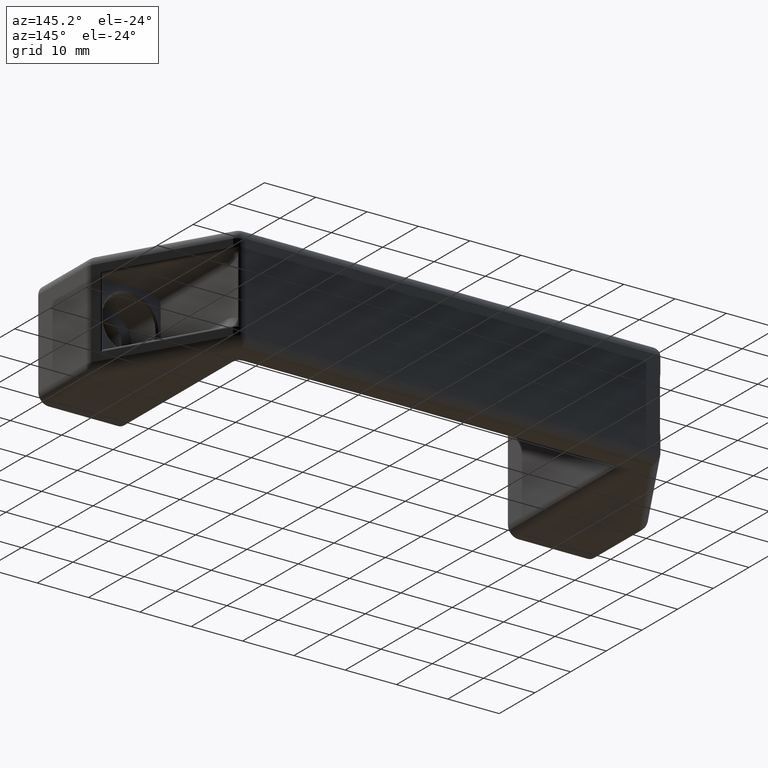
[diagram: clean part render]
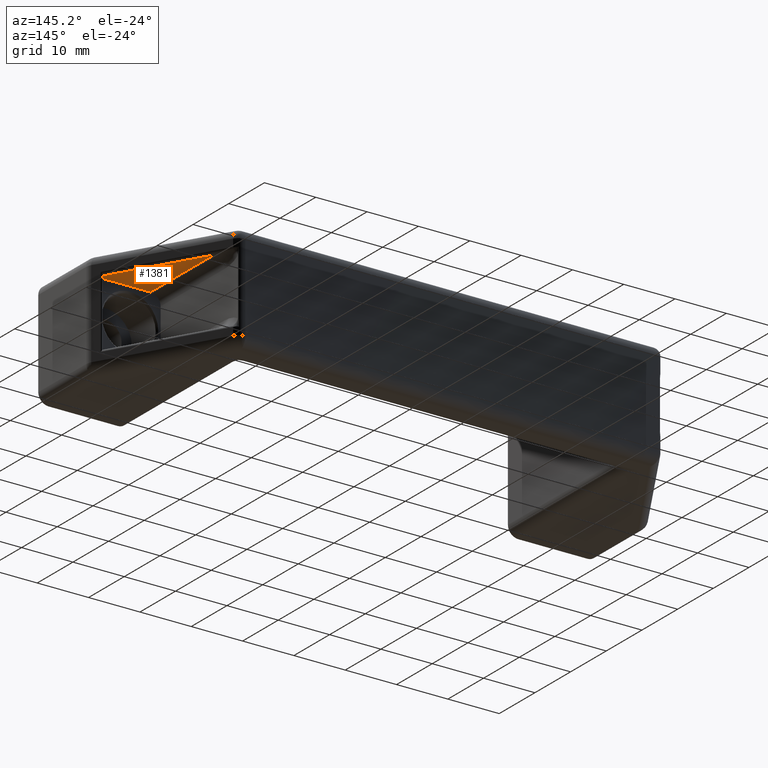
[diagram: same view with one face highlighted and labeled with its STEP entity id]
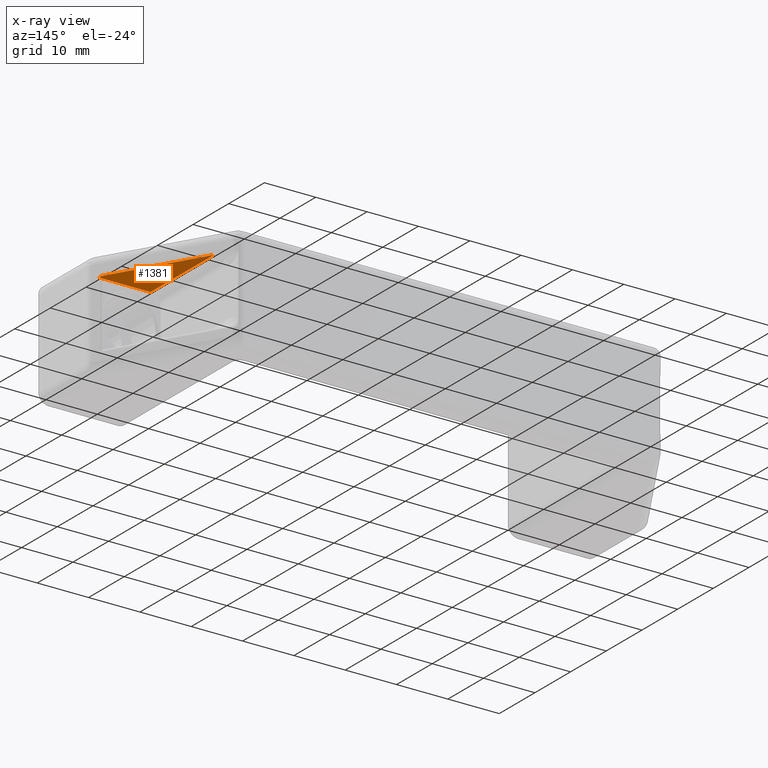
[diagram: x-ray of the same camera — body ghosted, the highlighted face saturated]
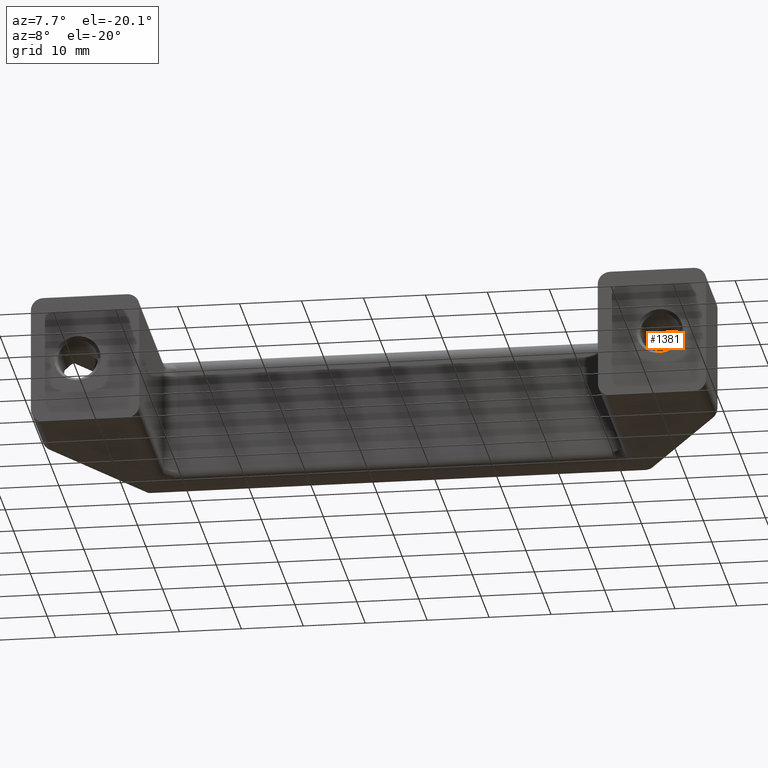
[diagram: same view with one face highlighted and labeled with its STEP entity id]
A machine part, auxiliary view. The second image highlights one B-rep face of the part: STEP entity #1381.
The next image is the same camera in x-ray: the body ghosted, the highlighted face saturated — about 0% of this face is hidden behind the body in this view.
A second angle (auxiliary view) of the same face is appended — the face is thin or edge-on in the first view.
In plain terms, the highlighted planar face has unit normal (0, 0, 1).
Its self-contained STEP definition (entity closure, byte-faithful):
#54=PLANE('',#1537);
#98=LINE('',#2162,#187);
#101=LINE('',#2274,#190);
#164=LINE('',#2689,#253);
#165=LINE('',#2692,#254);
#187=VECTOR('',#1612,10.);
#190=VECTOR('',#1625,17.7248418256967);
#253=VECTOR('',#1896,19.7550153379179);
#254=VECTOR('',#1901,0.687804788659685);
#368=FACE_OUTER_BOUND('',#471,.T.);
#471=EDGE_LOOP('',(#1173,#1174,#1175,#1176));
#603=VERTEX_POINT('',#2159);
#604=VERTEX_POINT('',#2161);
#612=VERTEX_POINT('',#2272);
#691=VERTEX_POINT('',#2687);
#729=EDGE_CURVE('',#603,#604,#98,.T.);
#740=EDGE_CURVE('',#612,#603,#101,.T.);
#864=EDGE_CURVE('',#691,#612,#164,.T.);
#865=EDGE_CURVE('',#691,#604,#165,.T.);
#1173=ORIENTED_EDGE('',*,*,#740,.F.);
#1174=ORIENTED_EDGE('',*,*,#864,.F.);
#1175=ORIENTED_EDGE('',*,*,#865,.T.);
#1176=ORIENTED_EDGE('',*,*,#729,.F.);
#1381=ADVANCED_FACE('',(#368),#54,.F.);
#1537=AXIS2_PLACEMENT_3D('',#2691,#1899,#1900);
#1612=DIRECTION('',(1.,0.,0.));
#1625=DIRECTION('',(0.,-1.,0.));
#1896=DIRECTION('',(-0.506200568764224,0.862415783820528,0.));
#1899=DIRECTION('center_axis',(0.,0.,1.));
#1900=DIRECTION('ref_axis',(1.,0.,0.));
#1901=DIRECTION('',(0.,-1.,0.));
#2159=CARTESIAN_POINT('',(66.4022348990986,-10.2950464309019,17.));
#2161=CARTESIAN_POINT('',(76.4022348990987,-10.2950464309019,17.));
#2162=CARTESIAN_POINT('',(64.4022348990987,-10.2950464309019,17.));
#2272=CARTESIAN_POINT('',(66.4022348990986,7.42979539479484,17.));
#2274=CARTESIAN_POINT('',(66.4022348990986,11.8249535690981,17.));
#2687=CARTESIAN_POINT('',(76.4022348990987,-9.6072416422422,17.));
#2689=CARTESIAN_POINT('',(63.9710270071884,11.571853284716,17.));
#2691=CARTESIAN_POINT('Origin',(64.4022348990987,11.8249535690981,17.));
#2692=CARTESIAN_POINT('',(76.4022348990987,11.8249535690981,17.));